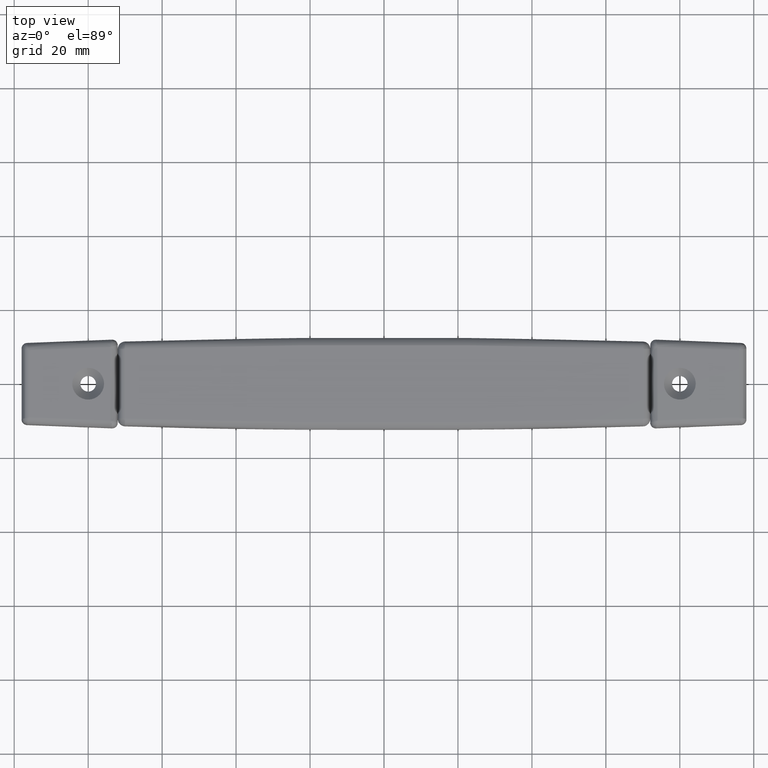
[diagram: clean part render]
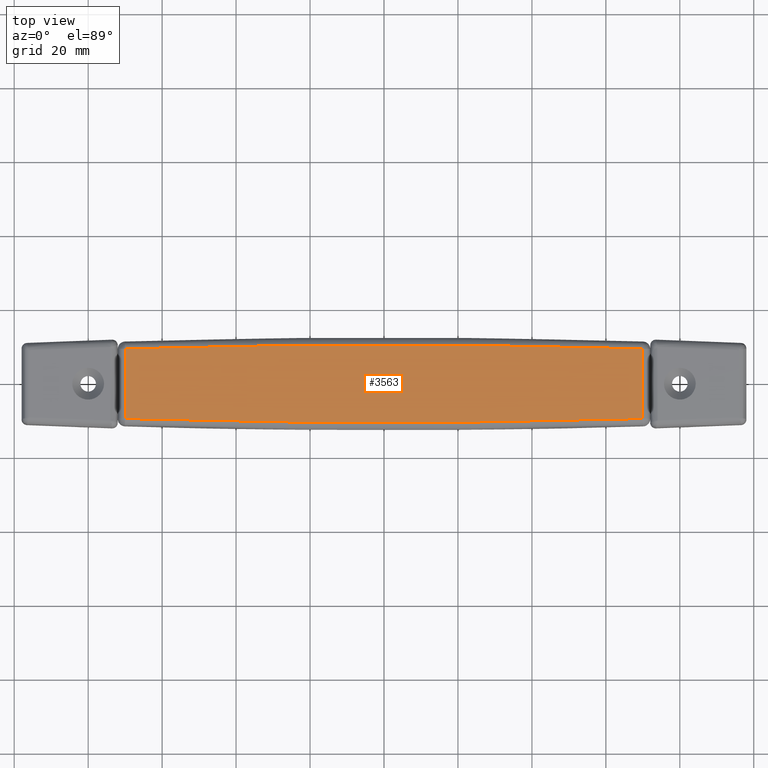
[diagram: same view with one face highlighted and labeled with its STEP entity id]
A machine part, top view. The second image highlights one B-rep face of the part: STEP entity #3563.
In plain terms, the highlighted face is a freeform B-spline surface patch.
Its self-contained STEP definition (entity closure, byte-faithful):
#3512=CARTESIAN_POINT('',(-76.992474753653809,11.549949959283200,7.999999999999900));
#3513=CARTESIAN_POINT('',(76.992978508733003,11.549949959283200,7.999999999999900));
#3514=CARTESIAN_POINT('',(-76.992474753653809,-11.547950522547030,7.999999999999900));
#3515=CARTESIAN_POINT('',(76.992978508733003,-11.547950522547030,7.999999999999900));
#3516=B_SPLINE_SURFACE_WITH_KNOTS('',1,1,((#3512,#3514),(#3513,#3515)),.UNSPECIFIED.,.F.,.F.,.U.,(2,2),(2,2),(0.0,153.985453262386810),(0.0,23.097900481830230),.UNSPECIFIED.);
#3517=CARTESIAN_POINT('',(-69.999500000000012,9.434623333454349,7.999999999999900));
#3518=VERTEX_POINT('',#3517);
#3519=CARTESIAN_POINT('',(-69.999500000000012,-9.432623333453631,7.999999999999900));
#3520=VERTEX_POINT('',#3519);
#3521=CARTESIAN_POINT('',(-69.999500000000012,9.434623333454349,7.999999999999900));
#3522=CARTESIAN_POINT('',(-69.999500000000012,-9.432623333453631,7.999999999999900));
#3523=QUASI_UNIFORM_CURVE('',1,(#3521,#3522),.UNSPECIFIED.,.F.,.U.);
#3524=EDGE_CURVE('',#3518,#3520,#3523,.T.);
#3525=ORIENTED_EDGE('',*,*,#3524,.T.);
#3526=CARTESIAN_POINT('',(70.0,-9.432608095802040,7.999999999999900));
#3527=VERTEX_POINT('',#3526);
#3528=CARTESIAN_POINT('',(-69.999500000000012,-9.432623333453631,7.999999999999900));
#3529=CARTESIAN_POINT('',(0.000250232186927,-11.565879369502595,7.999999999999900));
#3530=CARTESIAN_POINT('',(70.000000000000739,-9.432608095802486,7.999999999999900));
#3538=(BOUNDED_CURVE()B_SPLINE_CURVE(2,(#3528,#3529,#3530),.UNSPECIFIED.,.F.,.U.)CURVE()GEOMETRIC_REPRESENTATION_ITEM()QUASI_UNIFORM_CURVE()RATIONAL_B_SPLINE_CURVE((1.0,0.999535951137790,1.0))REPRESENTATION_ITEM(''));
#3539=EDGE_CURVE('',#3520,#3527,#3538,.T.);
#3540=ORIENTED_EDGE('',*,*,#3539,.T.);
#3541=CARTESIAN_POINT('',(70.0,9.434608095802320,7.999999999999900));
#3542=VERTEX_POINT('',#3541);
#3543=CARTESIAN_POINT('',(70.0,-9.432608095802040,7.999999999999900));
#3544=CARTESIAN_POINT('',(70.0,9.434608095802320,7.999999999999900));
#3545=QUASI_UNIFORM_CURVE('',1,(#3543,#3544),.UNSPECIFIED.,.F.,.U.);
#3546=EDGE_CURVE('',#3527,#3542,#3545,.T.);
#3547=ORIENTED_EDGE('',*,*,#3546,.T.);
#3548=CARTESIAN_POINT('',(70.0,9.434608095802320,7.999999999999900));
#3549=CARTESIAN_POINT('',(0.000250232184545,11.567879369502428,7.999999999999900));
#3550=CARTESIAN_POINT('',(-69.999499999999827,9.434623333454351,7.999999999999900));
#3558=(BOUNDED_CURVE()B_SPLINE_CURVE(2,(#3548,#3549,#3550),.UNSPECIFIED.,.F.,.U.)CURVE()GEOMETRIC_REPRESENTATION_ITEM()QUASI_UNIFORM_CURVE()RATIONAL_B_SPLINE_CURVE((1.0,0.999535951137790,1.0))REPRESENTATION_ITEM(''));
#3559=EDGE_CURVE('',#3542,#3518,#3558,.T.);
#3560=ORIENTED_EDGE('',*,*,#3559,.T.);
#3561=EDGE_LOOP('',(#3525,#3540,#3547,#3560));
#3562=FACE_OUTER_BOUND('',#3561,.T.);
#3563=ADVANCED_FACE('',(#3562),#3516,.F.);